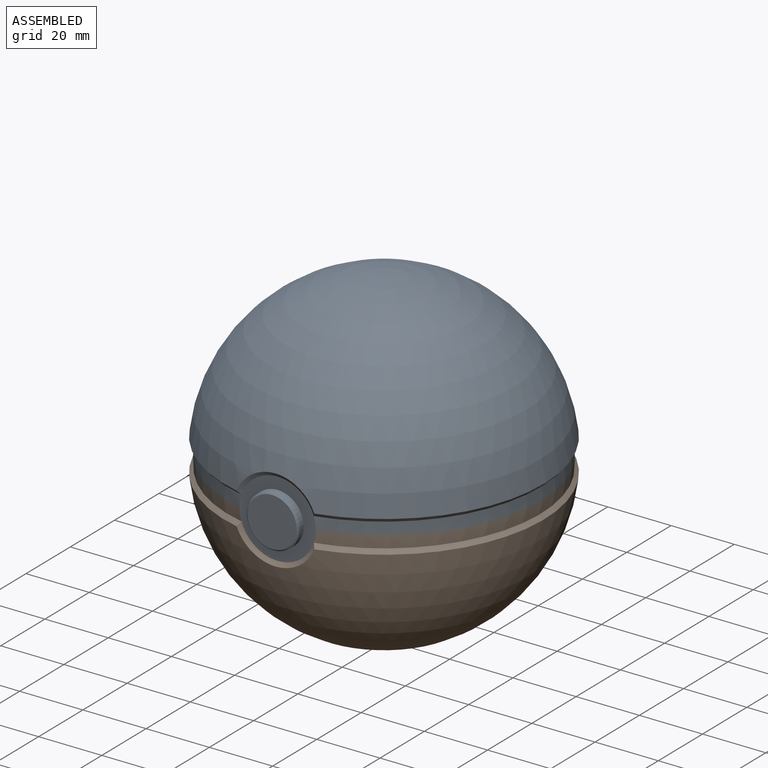
[diagram: assembled view]
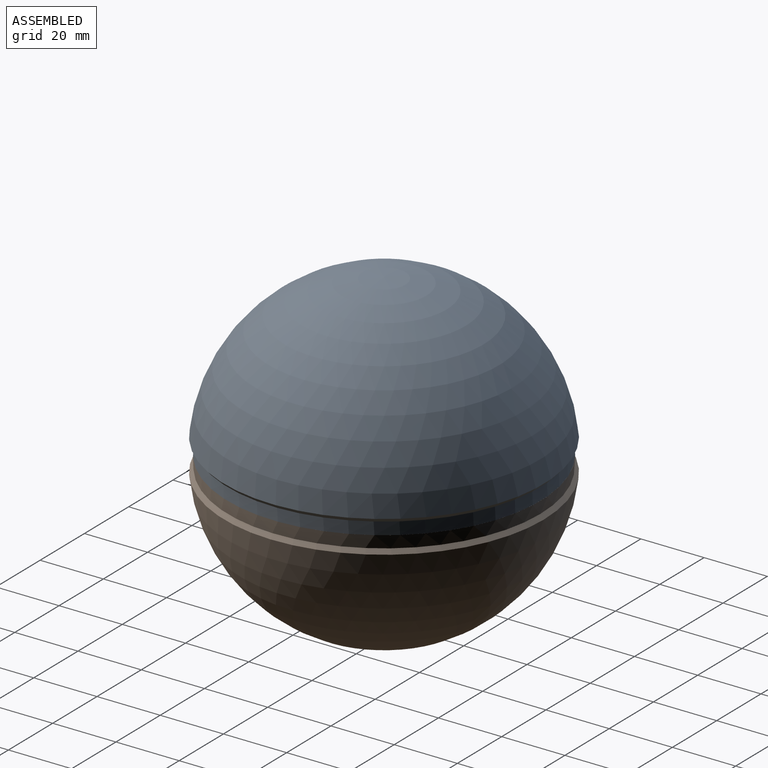
[diagram: assembled view, second angle]
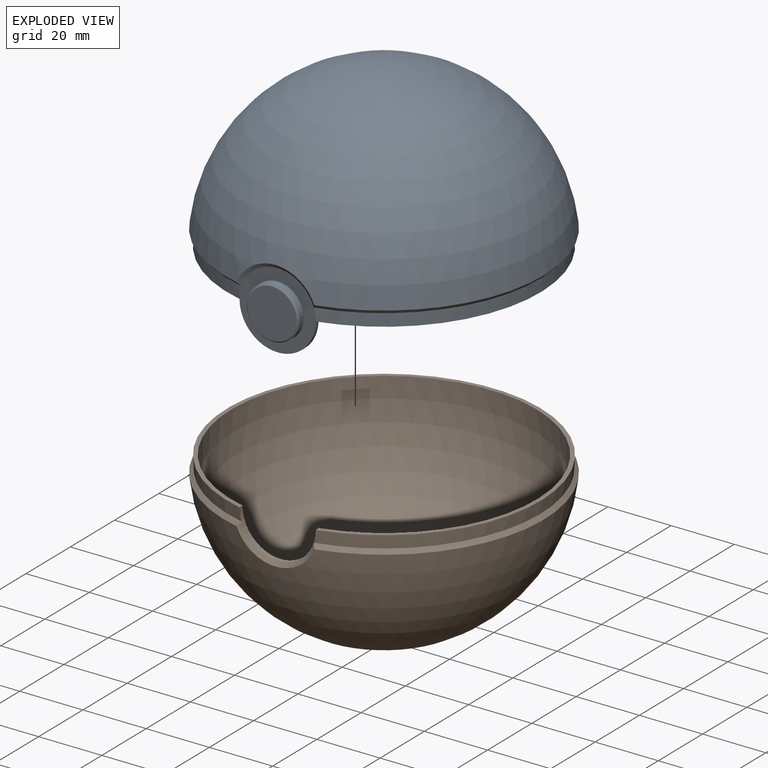
[diagram: exploded view]
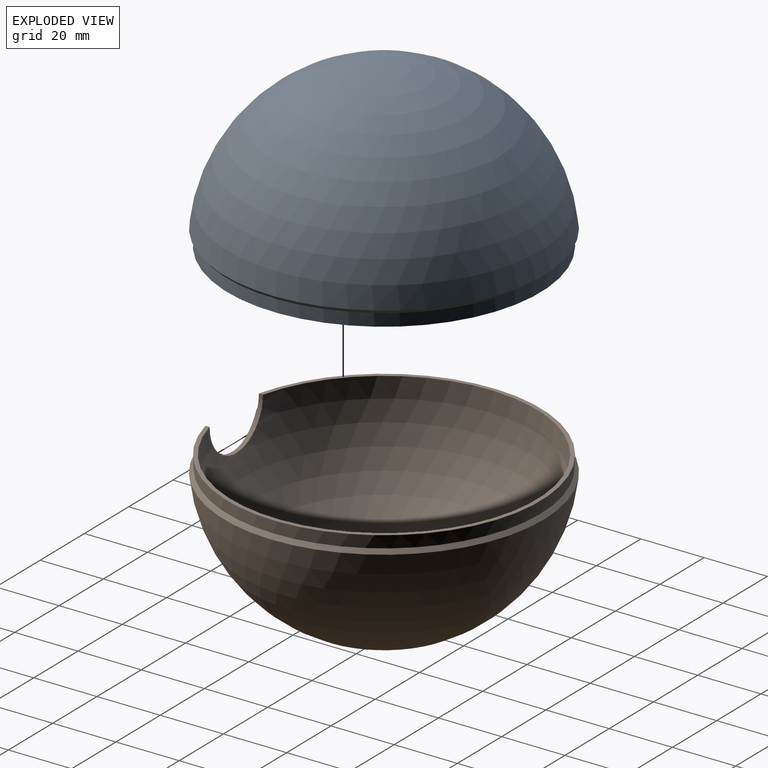
[diagram: exploded view, second angle]
ASSEMBLY  parts=2 mates=2
PART A: 13 faces, bbox 101.1x101.1x62.9 mm
  f0: cylinder r=12.06mm len=24.13mm, axis (0,1,0), area 49.7mm2, adj f2,f5,f7
  f1: sphere r=48.26mm, area 14401.4mm2, adj f2,f5
  f2: plane 99.06x97.57mm, normal (0,0,-1), area 359.2mm2, adj f0,f1,f3
  f3: sphere r=49.53mm, area 1098mm2, adj f2,f7,f11
  f4: sphere r=50.8mm, area 14435.3mm2, adj f11,f12
  f5: plane 24.13x24.13mm, normal (0,1,0), area 457.3mm2, adj f0,f1
  f6: cylinder r=12.06mm len=22.89mm, axis (0,-1,0), area 0.7mm2, adj f7,f11,f12
  f7: plane 24.13x24.13mm, normal (0,-1,0), area 243.2mm2, adj f0,f3,f6,f8
  f8: cylinder r=8.26mm len=16.51mm, axis (0,-1,0), area 103.3mm2, adj f7,f10
  f9: plane 15.49x15.49mm, normal (0,-1,0), area 188.5mm2, adj f10
  f10: cone r=7.75mm half-angle=45deg, axis (0,1,0), area 36.1mm2, adj f8,f9
  f11: cone r=49.37mm half-angle=42.1deg, axis (0,0,1), area 501.8mm2, adj f3,f4,f6,f12
  f12: cone r=13.32mm half-angle=52.6deg, axis (0,-1,0), area 48.7mm2, adj f4,f6,f11
PART B: 7 faces, bbox 101.1x101.1x50.8 mm
  f0: sphere r=48.26mm, area 14401.4mm2, adj f1,f4
  f1: plane 99.06x97.57mm, normal (0,0,1), area 359.2mm2, adj f0,f2,f4
  f2: sphere r=49.53mm, area 1098mm2, adj f1,f4,f5
  f3: sphere r=50.8mm, area 14435.3mm2, adj f5,f6
  f4: cylinder r=12.06mm len=24.13mm, axis (0,1,0), area 50.3mm2, adj f0,f1,f2,f5,f6
  f5: cone r=50.54mm half-angle=42.1deg, axis (0,0,-1), area 501.8mm2, adj f2,f3,f4,f6
  f6: cone r=13.32mm half-angle=52.6deg, axis (0,-1,0), area 48.7mm2, adj f3,f4,f5
PLACE A t=(-36.45,5.27,5.25)mm
PLACE B t=(-36.45,5.28,5.25)mm
MATE planar B.f5 <-> A.f11  axis (0,0,1) through (-36.45,5.28,5.25)mm
MATE planar B.f4 <-> A.f0  axis (0,1,0) through (-36.45,-42.11,5.25)mm
